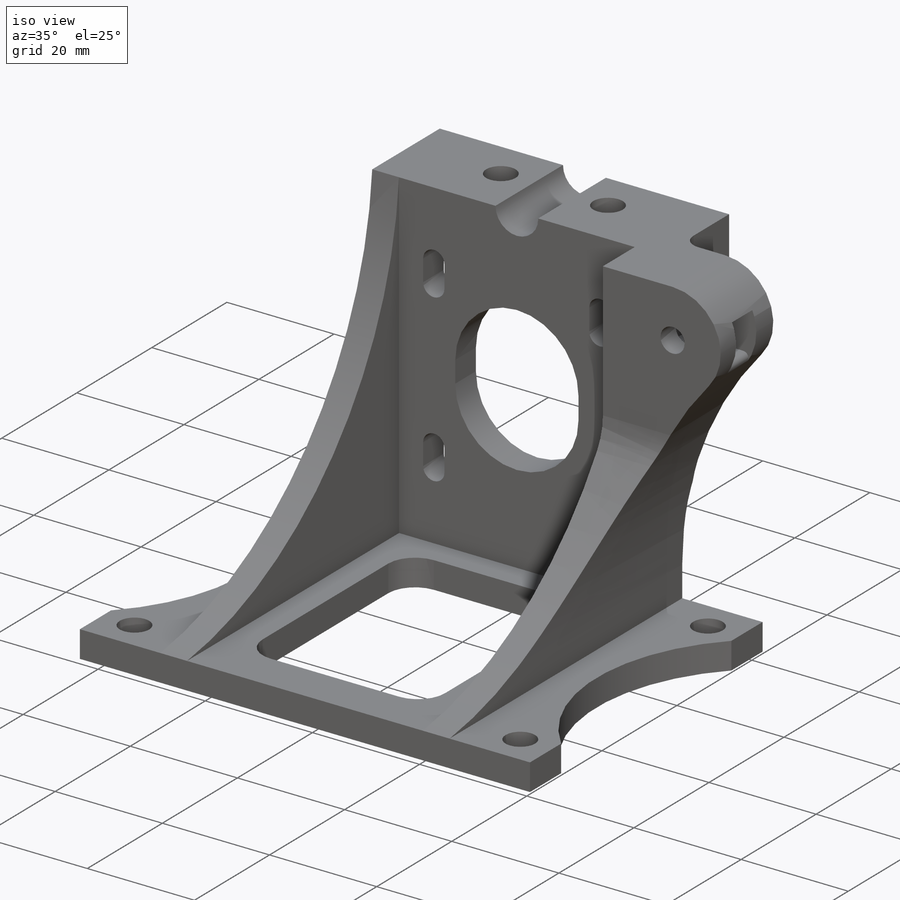
[diagram: iso view]
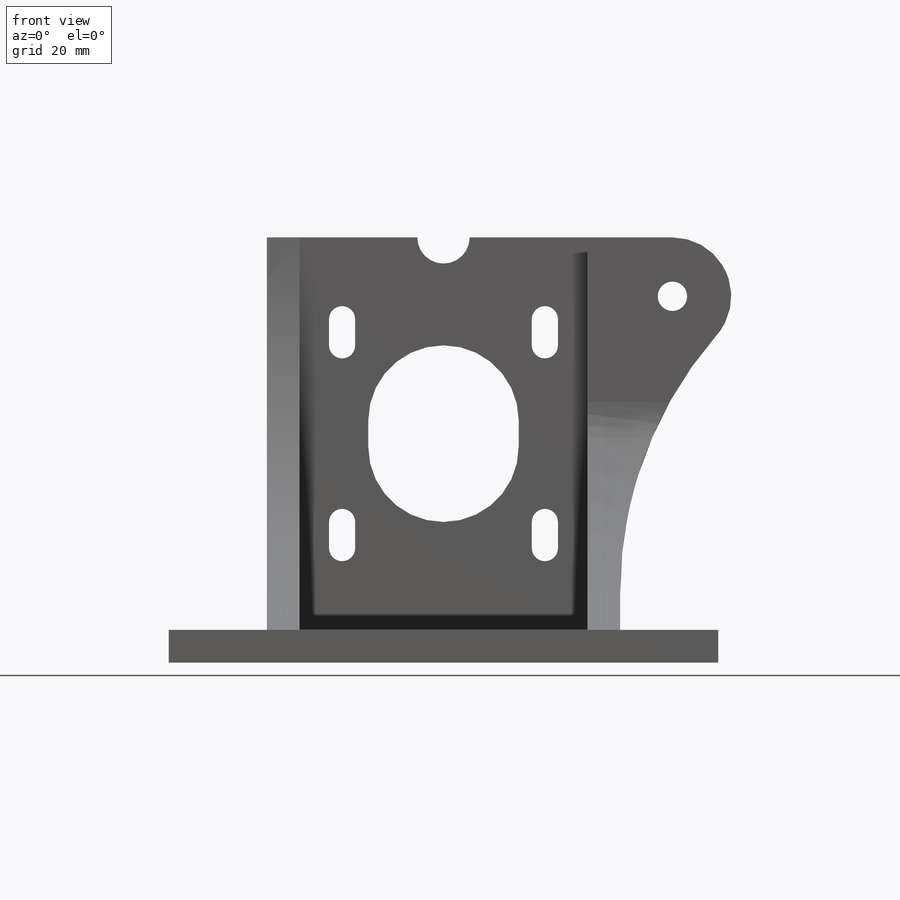
[diagram: front view]
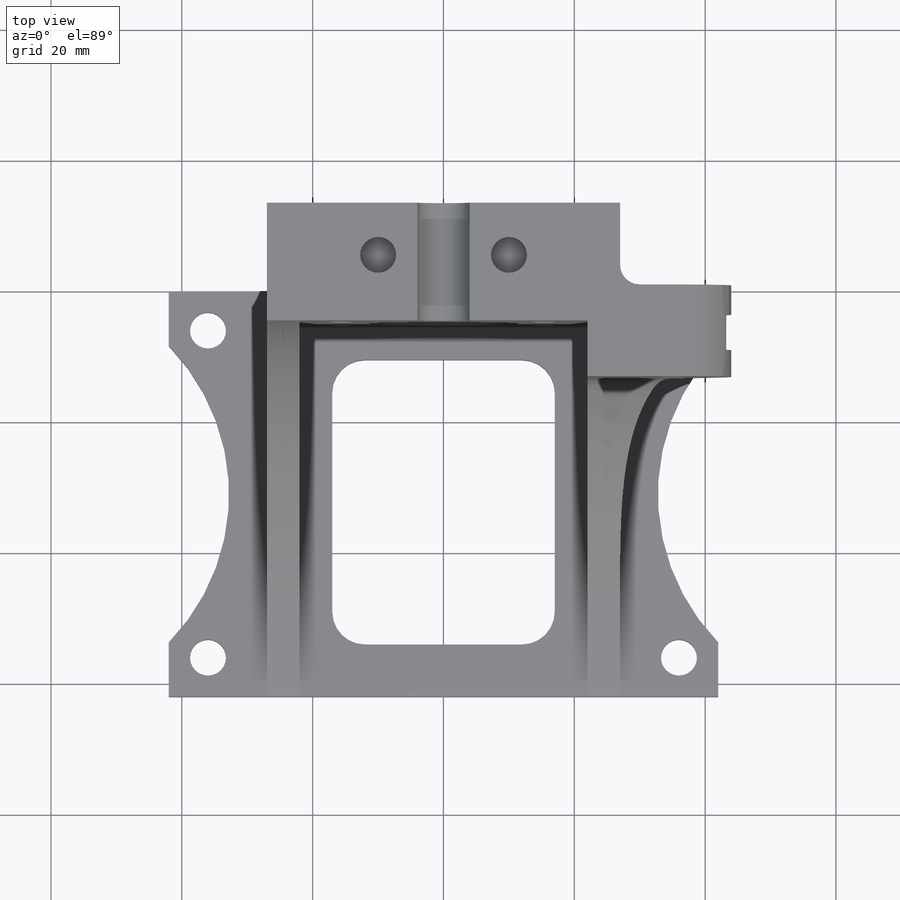
[diagram: top view]
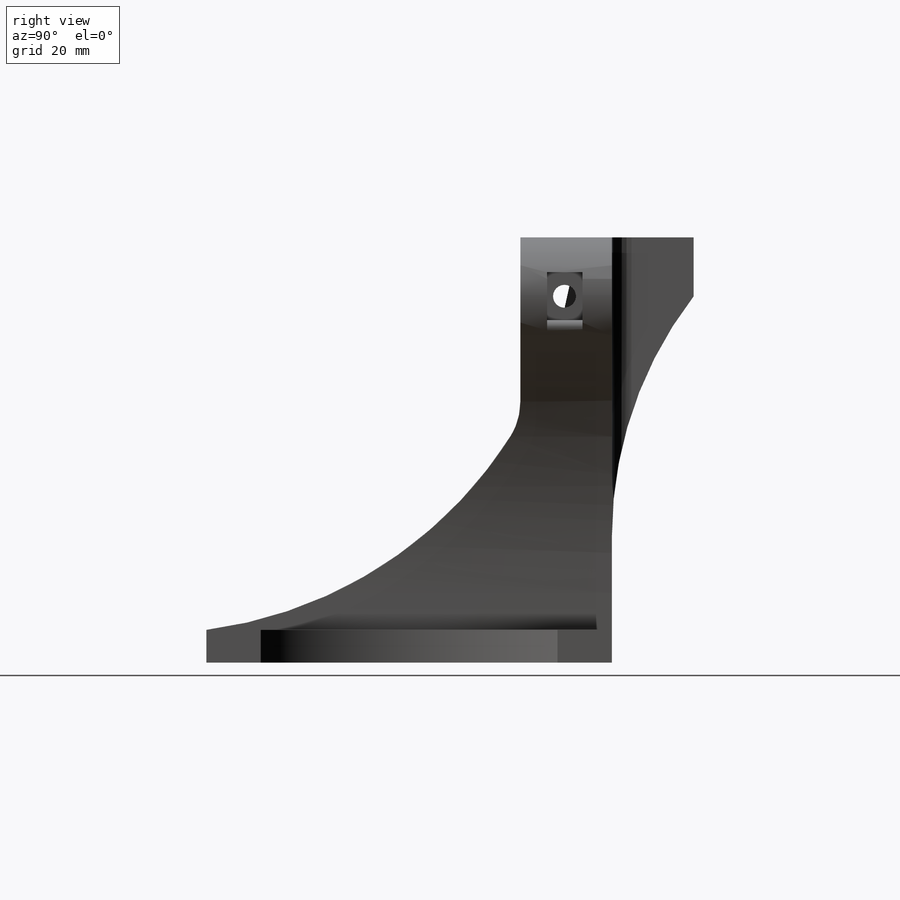
[diagram: right view]
SOLIDWORKS PART (.sldprt)
format: sldprt  version: not decoded by parser v0  size: 651,776 bytes
history: native  units: mm
features: sketch x17, cut_extrude x12, extrude x5, fillet x2, material x1, mirror x1 (+11 scaffold rows collapsed)
feature tree (49):
  scaffold x11  (default folders/planes/origin — collapsed)
  material  "Material <not specified>"
  sketch  "Sketch1"  dims[c1.D5=4.0mm c1.D7=23.0mm c1.D8=22.0mm c1.D14=4.0mm c2.D5=8.0mm c2.D1=54.0mm c2.D2=84.0mm c2.D3=5.0mm c2.D4=50.0mm c2.D6=33.0mm c2.D9=14.0mm c2.D10=13.0mm c2.D11=8.0mm c2.D12=5.0mm c2.D13=5.0mm c3.D10=5.0mm c3.D11=5.0mm c3.D4=65.0mm c3.D8=4.0mm]
  extrude  "Boss-Extrude1"  Depth=62mm
  sketch  "Sketch2"  dims[c1.D2=100.0mm c1.D3=65.0mm c1.D1=5.5mm c2.D2=5.0mm]
  cut_extrude  "Cut-Extrude1"  [1 undecoded]
  sketch  "Sketch12"  dims[c1.D1=5.0mm c1.D2=5.0mm c2.D1=5.0mm c2.D2=5.0mm]
  cut_extrude  "Cut-Extrude11"  Depth=30mm
  sketch  "Sketch17"  dims[c1.D1=5.5mm c1.D4=~91.119605mm c1.D5=~119.630472mm c1.D6=65.0mm c1.D2=6.0mm c1.D3=50.0mm c2.D4=6.0mm c2.D5=6.0mm]
  cut_extrude  "Cut-Extrude14"  [1 undecoded]
  sketch  "Sketch20"  dims[D3=4.0mm D1=31.0mm D2=31.0mm D4=17.5mm D5=15.5mm D6=4.0mm]
  cut_extrude  "Cut-Extrude17"  Depth=10mm
  sketch  "Sketch21"  dims[c1.D7=5.0mm c1.D3=5.0mm c1.D1=5.0mm c1.D2=5.0mm c2.D3=5.0mm c2.D4=5.0mm c2.D5=8.0mm c2.D6=5.0mm]
  cut_extrude  "Cut-Extrude18"  [1 undecoded]
  sketch  "Sketch24"  dims[D1=0.0mm]
  cut_extrude  "Cut-Extrude19"  [1 undecoded]
  sketch  "Sketch25"  dims[D1=~25.45725mm D2=9.0mm]
  extrude  "Boss-Extrude2"  Depth=12.5mm
  sketch  "Sketch27"  dims[D1=60.0mm]
  extrude  "Boss-Extrude3"  Depth=5mm
  mirror  "Mirror1"
  sketch  "Sketch28"  dims[D4=8.5mm D1=8.0mm D2=20.0mm D3=10.0mm]
  cut_extrude  "Cut-Extrude20"  Depth=5mm
  sketch  "Sketch29"  dims[D2=5.5mm D1=20.0mm D3=8.0mm]
  cut_extrude  "Cut-Extrude21"  Depth=6mm
  sketch  "Sketch30"  dims[D3=10.0mm D2=48.0mm D1=0.0mm]
  extrude  "Boss-Extrude4"  Depth=20mm
  sketch  "Sketch31"  dims[c1.D2=4.5mm c1.D3=15.0mm c1.D4=60.0mm c1.D5=3.0mm c1.D1=35.0mm c1.D6=~2.814631mm c2.D6=40.0deg]
  cut_extrude  "Cut-Extrude24"  [1 undecoded]
  sketch  "Sketch33"
  extrude  "Boss-Extrude5"  Depth=0.4mm
  sketch  "Sketch35"  dims[D1=7.3mm D2=4.5mm]
  cut_extrude  "Cut-Extrude26"  Depth=5.4mm
  sketch  "Sketch36"  dims[D1=12.5mm]
  cut_extrude  "Cut-Extrude27"  Depth=46mm
  fillet  "Fillet1"  Radius=3mm
  fillet  "Fillet2"  Radius=1mm
  sketch  "Sketch37"  dims[D1=3.5mm]
  cut_extrude  "Cut-Extrude28"  Depth=10mm
decode coverage: 30 of 37 modeling features carry decoded parameters
note: ~ marks probable driven/reference dimensions
note: 5 parameter values undecoded
summary: no parameter record found for 5 features
note: suppression state not decoded; provenance and decode notes live in map.json
